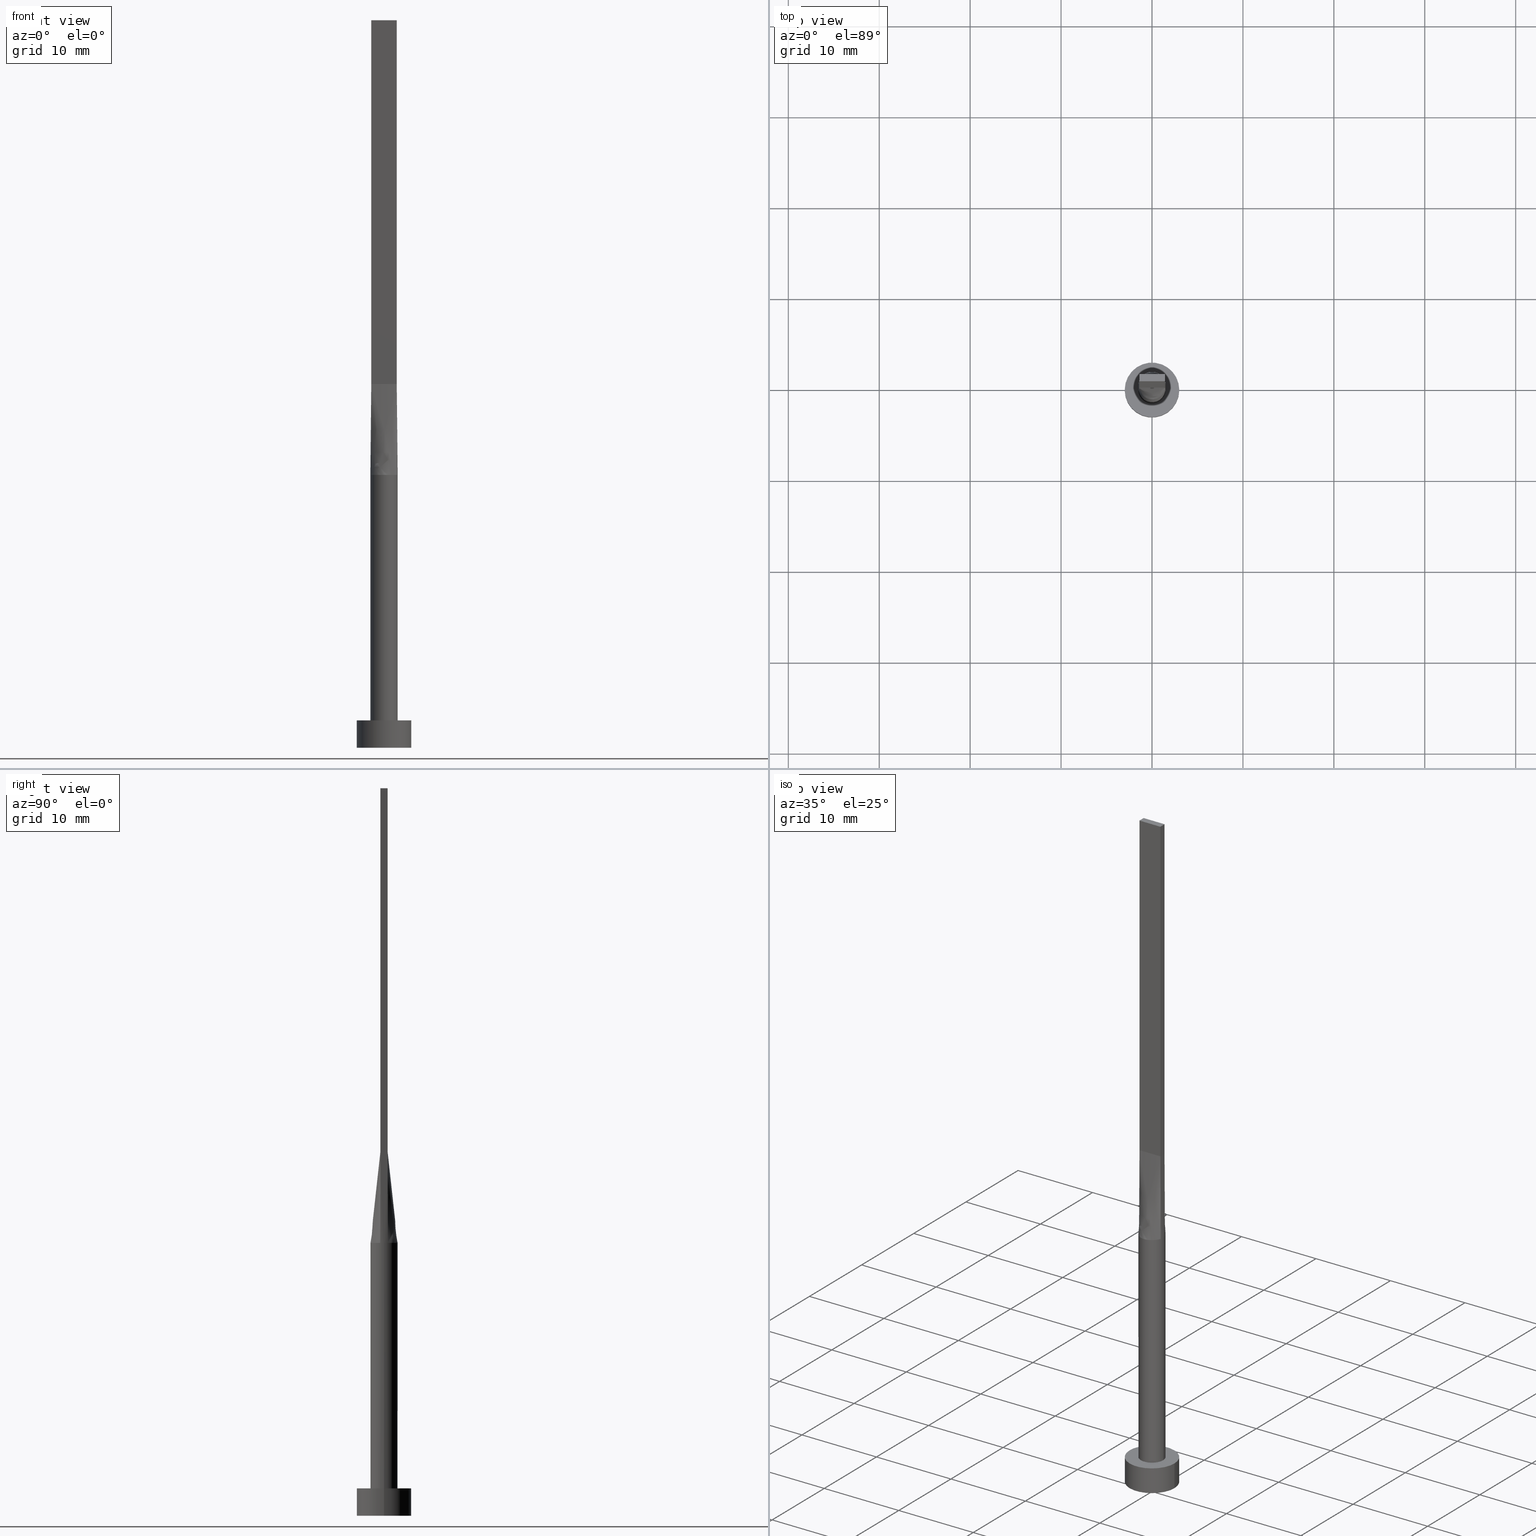
[diagram: canonical four-view strip — front | top / right | iso, engineering-drawing reading convention]
A machine part, canonical four-view strip (front | top / right | iso — engineering-drawing reading convention). The complete STEP part file that produces these views, byte-faithful:
ISO-10303-21;
HEADER;
FILE_DESCRIPTION (( 'STEP AP203' ),
    '1' );
FILE_NAME ('2038.STEP',
    '2026-02-12T09:00:09',
    ( '' ),
    ( '' ),
    'SwSTEP 2.0',
    'SolidWorks 2019',
    '' );
FILE_SCHEMA (( 'CONFIG_CONTROL_DESIGN' ));
ENDSEC;

DATA;
#1 = CARTESIAN_POINT ( 'NONE',  ( 0.000000000000000000, 0.000000000000000000, 30.00000000000000000 ) ) ;
#2 = CARTESIAN_POINT ( 'NONE',  ( -1.421142960730617189, 0.4060408459230336331, 35.00000000000000000 ) ) ;
#3 = ORIENTED_EDGE ( 'NONE', *, *, #125, .F. ) ;
#4 = CARTESIAN_POINT ( 'NONE',  ( 1.399999999999999689, 0.1333333333333333037, 39.99999999999999289 ) ) ;
#5 = CARTESIAN_POINT ( 'NONE',  ( -1.409267053536706893, -0.5276477295819155255, 30.00000000000000000 ) ) ;
#6 = ORIENTED_EDGE ( 'NONE', *, *, #383, .F. ) ;
#7 = ORIENTED_EDGE ( 'NONE', *, *, #525, .F. ) ;
#8 = DIRECTION ( 'NONE',  ( 1.000000000000000000, 0.000000000000000000, 0.000000000000000000 ) ) ;
#9 = CARTESIAN_POINT ( 'NONE',  ( -1.283333333333333437, -0.3999999999999996336, 39.99999999999999289 ) ) ;
#10 = ORIENTED_EDGE ( 'NONE', *, *, #539, .T. ) ;
#11 = AXIS2_PLACEMENT_3D ( 'NONE', #363, #145, #8 ) ;
#12 = CARTESIAN_POINT ( 'NONE',  ( -1.500000000000000222, 0.000000000000000000, 3.000000000000000000 ) ) ;
#13 = CYLINDRICAL_SURFACE ( 'NONE', #414, 3.000000000000000444 ) ;
#14 = ORIENTED_EDGE ( 'NONE', *, *, #257, .T. ) ;
#15 = DIRECTION ( 'NONE',  ( 1.000000000000000000, -5.808225924029488744E-17, 0.000000000000000000 ) ) ;
#16 = CARTESIAN_POINT ( 'NONE',  ( -1.442285921461235132, -0.4120816918460664113, 30.00000000000000000 ) ) ;
#17 = ORIENTED_EDGE ( 'NONE', *, *, #73, .T. ) ;
#18 = LINE ( 'NONE', #427, #317 ) ;
#19 = CARTESIAN_POINT ( 'NONE',  ( 0.000000000000000000, 0.000000000000000000, 80.00000000000000000 ) ) ;
#20 = APPROVAL_PERSON_ORGANIZATION ( #164, #328, #347 ) ;
#21 = CARTESIAN_POINT ( 'NONE',  ( 0.5833333333333330373, 0.4000000000000001887, 39.99999999999999289 ) ) ;
#22 = EDGE_CURVE ( 'NONE', #43, #59, #226, .T. ) ;
#23 = EDGE_CURVE ( 'NONE', #55, #326, #445, .T. ) ;
#24 = CARTESIAN_POINT ( 'NONE',  ( 1.442285921461234910, 0.4120816918460671330, 30.00000000000000000 ) ) ;
#25 = LINE ( 'NONE', #61, #463 ) ;
#26 = CARTESIAN_POINT ( 'NONE',  ( -1.442387148345315895, 0.4121110244020492197, 30.00000000000000000 ) ) ;
#27 = FACE_OUTER_BOUND ( 'NONE', #491, .T. ) ;
#28 = CARTESIAN_POINT ( 'NONE',  ( 1.409267053536706671, -0.5276477295819165247, 30.00000000000000000 ) ) ;
#29 = DATE_TIME_ROLE ( 'creation_date' ) ;
#30 = FACE_OUTER_BOUND ( 'NONE', #238, .T. ) ;
#31 = EDGE_CURVE ( 'NONE', #308, #182, #261, .T. ) ;
#32 = CIRCLE ( 'NONE', #364, 1.500000000000000222 ) ;
#33 = CARTESIAN_POINT ( 'NONE',  ( -0.3767059690781846548, 1.463302066271692015, 30.00000000000000000 ) ) ;
#34 = APPROVAL_DATE_TIME ( #567, #254 ) ;
#35 = CARTESIAN_POINT ( 'NONE',  ( 0.1885753531885901724, 1.500000000000000666, 30.00000000000000711 ) ) ;
#36 = DATE_AND_TIME ( #123, #271 ) ;
#37 = CIRCLE ( 'NONE', #330, 1.500000000000000222 ) ;
#38 = ORIENTED_EDGE ( 'NONE', *, *, #383, .T. ) ;
#39 = CARTESIAN_POINT ( 'NONE',  ( 3.000000000000000444, 3.673940397442060361E-16, 3.000000000000000000 ) ) ;
#40 = CC_DESIGN_DATE_AND_TIME_ASSIGNMENT ( #388, #29, ( #577 ) ) ;
#41 = EDGE_CURVE ( 'NONE', #47, #55, #264, .T. ) ;
#42 = CARTESIAN_POINT ( 'NONE',  ( 1.442285921461234910, 0.4120816918460673550, 30.00000000000000000 ) ) ;
#43 = VERTEX_POINT ( 'NONE', #574 ) ;
#44 = AXIS2_PLACEMENT_3D ( 'NONE', #19, #516, #428 ) ;
#45 = DIRECTION ( 'NONE',  ( 1.000000000000000000, -5.808225924029488744E-17, 0.000000000000000000 ) ) ;
#46 = LINE ( 'NONE', #132, #215 ) ;
#47 = VERTEX_POINT ( 'NONE', #569 ) ;
#48 = ORIENTED_EDGE ( 'NONE', *, *, #561, .F. ) ;
#49 = DIRECTION ( 'NONE',  ( -2.710505431213761578E-16, -1.000000000000000000, 0.000000000000000000 ) ) ;
#50 = CARTESIAN_POINT ( 'NONE',  ( 1.399999999999999911, -0.3999999999999998002, 80.00000000000000000 ) ) ;
#51 = DIRECTION ( 'NONE',  ( -0.000000000000000000, -0.000000000000000000, -1.000000000000000000 ) ) ;
#52 = EDGE_LOOP ( 'NONE', ( #273, #352, #548, #313 ) ) ;
#53 = DIRECTION ( 'NONE',  ( 1.000000000000000000, 0.000000000000000000, 0.000000000000000000 ) ) ;
#54 = CARTESIAN_POINT ( 'NONE',  ( 0.3767059690781844328, -1.463302066271691571, 30.00000000000000000 ) ) ;
#55 = VERTEX_POINT ( 'NONE', #248 ) ;
#56 = VECTOR ( 'NONE', #210, 1000.000000000000000 ) ;
#57 = CARTESIAN_POINT ( 'NONE',  ( 1.442393550978850802, -0.4121129214357137083, 30.00000000000000000 ) ) ;
#58 = CARTESIAN_POINT ( 'NONE',  ( -0.8665786268839192896, -1.235433898681764786, 30.00000000000000000 ) ) ;
#59 = VERTEX_POINT ( 'NONE', #252 ) ;
#60 = CARTESIAN_POINT ( 'NONE',  ( 0.3767059690781852654, 1.463302066271692015, 30.00000000000000000 ) ) ;
#61 = CARTESIAN_POINT ( 'NONE',  ( 1.399999999999999689, 0.4000000000000002442, 40.00000000000000000 ) ) ;
#62 = CARTESIAN_POINT ( 'NONE',  ( -1.442285921461234688, 0.4120816918460674105, 30.00000000000000000 ) ) ;
#63 = B_SPLINE_SURFACE_WITH_KNOTS ( 'NONE', 3, 1, ( 
 ( #16, #372 ),
 ( #5, #9 ),
 ( #329, #279 ),
 ( #510, #91 ),
 ( #106, #360 ),
 ( #58, #541 ),
 ( #185, #146 ),
 ( #547, #143 ),
 ( #322, #501 ),
 ( #100, #460 ),
 ( #54, #504 ),
 ( #232, #189 ),
 ( #103, #464 ),
 ( #514, #336 ),
 ( #157, #154 ),
 ( #341, #381 ),
 ( #28, #69 ),
 ( #111, #333 ) ),
 .UNSPECIFIED., .F., .F., .F.,
 ( 4, 2, 2, 2, 2, 2, 2, 2, 4 ),
 ( 2, 2 ),
 ( 0.000000000000000000, 0.1250000000000000833, 0.2500000000000001665, 0.3750000000000001110, 0.5000000000000001110, 0.6250000000000001110, 0.7500000000000000000, 0.8750000000000000000, 1.000000000000000000 ),
 ( 0.000000000000000000, 1.000000000000000000 ),
 .UNSPECIFIED. ) ;
#64 = EDGE_CURVE ( 'NONE', #331, #268, #68, .T. ) ;
#65 = DIRECTION ( 'NONE',  ( 0.000000000000000000, 0.000000000000000000, 1.000000000000000000 ) ) ;
#66 = CIRCLE ( 'NONE', #11, 1.500000000000000222 ) ;
#67 = CARTESIAN_POINT ( 'NONE',  ( -0.7158926189626803049, 1.330660769095148410, 30.00000000000000355 ) ) ;
#68 = CIRCLE ( 'NONE', #416, 1.500000000000000222 ) ;
#69 = CARTESIAN_POINT ( 'NONE',  ( 1.283333333333332993, -0.3999999999999997446, 39.99999999999999289 ) ) ;
#70 = DIRECTION ( 'NONE',  ( -0.000000000000000000, -0.000000000000000000, -1.000000000000000000 ) ) ;
#71 = CARTESIAN_POINT ( 'NONE',  ( 1.399999999999999911, -0.3999999999999998002, 40.00000000000000000 ) ) ;
#72 = DIRECTION ( 'NONE',  ( 2.710505431213761085E-16, -1.000000000000000000, 0.000000000000000000 ) ) ;
#73 = EDGE_CURVE ( 'NONE', #420, #331, #213, .T. ) ;
#74 = DIRECTION ( 'NONE',  ( -0.000000000000000000, -0.000000000000000000, -1.000000000000000000 ) ) ;
#75 = DIRECTION ( 'NONE',  ( 1.000000000000000000, 0.000000000000000000, 0.000000000000000000 ) ) ;
#76 = PERSON_AND_ORGANIZATION ( #396, #307 ) ;
#77 = CARTESIAN_POINT ( 'NONE',  ( -0.7158926189626803049, 1.330660769095148410, 30.00000000000000355 ) ) ;
#78 = DIRECTION ( 'NONE',  ( 1.000000000000000000, 0.000000000000000000, 0.000000000000000000 ) ) ;
#79 = CARTESIAN_POINT ( 'NONE',  ( 1.500000000000000222, 1.836970198721030181E-16, 30.00000000000000000 ) ) ;
#80 = ADVANCED_FACE ( 'NONE', ( #344 ), #523, .T. ) ;
#81 = APPLICATION_CONTEXT ( 'configuration controlled 3d designs of mechanical parts and assemblies' ) ;
#82 = CC_DESIGN_PERSON_AND_ORGANIZATION_ASSIGNMENT ( #212, #386, ( #556 ) ) ;
#83 = AXIS2_PLACEMENT_3D ( 'NONE', #295, #431, #72 ) ;
#84 = AXIS2_PLACEMENT_3D ( 'NONE', #305, #348, #475 ) ;
#85 = CC_DESIGN_DATE_AND_TIME_ASSIGNMENT ( #36, #253, ( #528 ) ) ;
#86 = ORIENTED_EDGE ( 'NONE', *, *, #257, .F. ) ;
#87 = ADVANCED_FACE ( 'NONE', ( #168 ), #429, .T. ) ;
#88 = DIRECTION ( 'NONE',  ( -0.000000000000000000, -0.000000000000000000, -1.000000000000000000 ) ) ;
#89 = ORIENTED_EDGE ( 'NONE', *, *, #107, .F. ) ;
#90 = CARTESIAN_POINT ( 'NONE',  ( -1.399999999999999911, -0.3999999999999996336, 80.00000000000000000 ) ) ;
#91 = CARTESIAN_POINT ( 'NONE',  ( -0.9333333333333335702, -0.3999999999999996336, 39.99999999999999289 ) ) ;
#92 = EDGE_LOOP ( 'NONE', ( #355, #139 ) ) ;
#93 = AXIS2_PLACEMENT_3D ( 'NONE', #572, #479, #75 ) ;
#94 = ORIENTED_EDGE ( 'NONE', *, *, #22, .T. ) ;
#95 = CARTESIAN_POINT ( 'NONE',  ( -1.421142960730617633, -0.4060408459230329670, 35.00000000000000000 ) ) ;
#96 = CARTESIAN_POINT ( 'NONE',  ( -1.399999999999999689, 0.4000000000000002442, 80.00000000000000000 ) ) ;
#97 = ORIENTED_EDGE ( 'NONE', *, *, #398, .F. ) ;
#98 = EDGE_LOOP ( 'NONE', ( #190, #543, #531, #277, #453, #552 ) ) ;
#99 = CARTESIAN_POINT ( 'NONE',  ( 1.480021770517838231, -0.2800062201479543988, 30.00000000000000000 ) ) ;
#100 = CARTESIAN_POINT ( 'NONE',  ( 0.1885753531885892564, -1.499999999999999778, 30.00000000000000000 ) ) ;
#101 = VERTEX_POINT ( 'NONE', #203 ) ;
#102 = DIRECTION ( 'NONE',  ( -0.000000000000000000, -0.000000000000000000, -1.000000000000000000 ) ) ;
#103 = CARTESIAN_POINT ( 'NONE',  ( 0.8665786268839185125, -1.235433898681766340, 30.00000000000001066 ) ) ;
#104 = ORIENTED_EDGE ( 'NONE', *, *, #31, .T. ) ;
#105 = CARTESIAN_POINT ( 'NONE',  ( 1.166666666666666075, 0.4000000000000001332, 39.99999999999999289 ) ) ;
#106 = CARTESIAN_POINT ( 'NONE',  ( -1.114527776139990323, -1.017390422009413209, 30.00000000000000000 ) ) ;
#107 = EDGE_CURVE ( 'NONE', #308, #487, #382, .T. ) ;
#108 = CARTESIAN_POINT ( 'NONE',  ( 1.283333333333332993, 0.4000000000000001887, 39.99999999999999289 ) ) ;
#109 = CARTESIAN_POINT ( 'NONE',  ( 1.399999999999999689, 0.4000000000000002442, 40.00000000000000000 ) ) ;
#110 = CARTESIAN_POINT ( 'NONE',  ( -0.3767059690781846548, 1.463302066271692015, 30.00000000000000000 ) ) ;
#111 = CARTESIAN_POINT ( 'NONE',  ( 1.442285921461234910, -0.4120816918460670220, 30.00000000000000000 ) ) ;
#112 = CIRCLE ( 'NONE', #426, 3.000000000000000444 ) ;
#113 = CARTESIAN_POINT ( 'NONE',  ( -1.442285921461235132, -0.4120816918460665224, 30.00000000000000000 ) ) ;
#114 = FACE_OUTER_BOUND ( 'NONE', #397, .T. ) ;
#115 = APPROVAL_DATE_TIME ( #304, #421 ) ;
#116 = LINE ( 'NONE', #301, #56 ) ;
#117 =( NAMED_UNIT ( * ) SI_UNIT ( $, .STERADIAN. ) SOLID_ANGLE_UNIT ( ) );
#118 = DIRECTION ( 'NONE',  ( -1.000000000000000000, 0.000000000000000000, 0.000000000000000000 ) ) ;
#119 = APPROVAL_ROLE ( '' ) ;
#120 = DIRECTION ( 'NONE',  ( -1.000000000000000000, 0.000000000000000000, 0.000000000000000000 ) ) ;
#121 = AXIS2_PLACEMENT_3D ( 'NONE', #454, #191, #549 ) ;
#122 = VECTOR ( 'NONE', #45, 1000.000000000000000 ) ;
#123 = CALENDAR_DATE ( 2026, 12, 2 ) ;
#124 = CARTESIAN_POINT ( 'NONE',  ( 1.212111761082483197, 0.8950936653899574935, 30.00000000000000711 ) ) ;
#125 = EDGE_CURVE ( 'NONE', #55, #47, #112, .T. ) ;
#126 = SHAPE_DEFINITION_REPRESENTATION ( #581, #513 ) ;
#127 = AXIS2_PLACEMENT_3D ( 'NONE', #327, #315, #53 ) ;
#128 = EDGE_CURVE ( 'NONE', #407, #369, #116, .T. ) ;
#129 = ORIENTED_EDGE ( 'NONE', *, *, #506, .F. ) ;
#130 = ORIENTED_EDGE ( 'NONE', *, *, #128, .F. ) ;
#131 = DIRECTION ( 'NONE',  ( 1.000000000000000000, 0.000000000000000000, -0.000000000000000000 ) ) ;
#132 = CARTESIAN_POINT ( 'NONE',  ( 1.399999999999999911, -0.3999999999999998002, 80.00000000000000000 ) ) ;
#133 = ORIENTED_EDGE ( 'NONE', *, *, #561, .T. ) ;
#134 = ORIENTED_EDGE ( 'NONE', *, *, #281, .F. ) ;
#135 = DIRECTION ( 'NONE',  ( 1.000000000000000000, 0.000000000000000000, -0.000000000000000000 ) ) ;
#136 = CARTESIAN_POINT ( 'NONE',  ( 0.000000000000000000, 0.000000000000000000, 3.000000000000000000 ) ) ;
#137 = ORIENTED_EDGE ( 'NONE', *, *, #23, .T. ) ;
#138 = VECTOR ( 'NONE', #554, 1000.000000000000000 ) ;
#139 = ORIENTED_EDGE ( 'NONE', *, *, #64, .F. ) ;
#140 = AXIS2_PLACEMENT_3D ( 'NONE', #387, #70, #120 ) ;
#141 = EDGE_CURVE ( 'NONE', #285, #234, #256, .T. ) ;
#142 = CYLINDRICAL_SURFACE ( 'NONE', #442, 1.500000000000000222 ) ;
#143 = CARTESIAN_POINT ( 'NONE',  ( -0.2333333333333344473, -0.3999999999999996336, 39.99999999999999289 ) ) ;
#144 = ORIENTED_EDGE ( 'NONE', *, *, #439, .T. ) ;
#145 = DIRECTION ( 'NONE',  ( 0.000000000000000000, 0.000000000000000000, 1.000000000000000000 ) ) ;
#146 = CARTESIAN_POINT ( 'NONE',  ( -0.4666666666666673957, -0.3999999999999996336, 39.99999999999999289 ) ) ;
#147 = VERTEX_POINT ( 'NONE', #478 ) ;
#148 = CARTESIAN_POINT ( 'NONE',  ( 1.399999999999999911, -0.2666666666666665519, 39.99999999999999289 ) ) ;
#149 = LINE ( 'NONE', #2, #532 ) ;
#150 = CC_DESIGN_PERSON_AND_ORGANIZATION_ASSIGNMENT ( #76, #437, ( #577 ) ) ;
#151 = ORIENTED_EDGE ( 'NONE', *, *, #269, .T. ) ;
#152 = CIRCLE ( 'NONE', #339, 3.000000000000000444 ) ;
#153 = CARTESIAN_POINT ( 'NONE',  ( -0.5833333333333332593, 0.4000000000000001887, 39.99999999999999289 ) ) ;
#154 = CARTESIAN_POINT ( 'NONE',  ( 0.9333333333333324600, -0.3999999999999997446, 39.99999999999999289 ) ) ;
#155 = B_SPLINE_SURFACE_WITH_KNOTS ( 'NONE', 3, 1, ( 
 ( #62, #380 ),
 ( #158, #242 ),
 ( #249, #476 ),
 ( #517, #375 ),
 ( #197, #200 ),
 ( #113, #294 ) ),
 .UNSPECIFIED., .F., .F., .F.,
 ( 4, 2, 4 ),
 ( 2, 2 ),
 ( 0.000000000000000000, 0.5000000000000000000, 1.000000000000000000 ),
 ( 0.000000000000000000, 1.000000000000000000 ),
 .UNSPECIFIED. ) ;
#156 = CARTESIAN_POINT ( 'NONE',  ( -0.1166666666666663771, 0.4000000000000001887, 39.99999999999999289 ) ) ;
#157 = CARTESIAN_POINT ( 'NONE',  ( 1.212111761082483197, -0.8950936653899579376, 30.00000000000000711 ) ) ;
#158 = CARTESIAN_POINT ( 'NONE',  ( -1.480021770517838231, 0.2800062201479542878, 30.00000000000000000 ) ) ;
#159 = DIRECTION ( 'NONE',  ( 0.000000000000000000, 0.000000000000000000, 1.000000000000000000 ) ) ;
#160 = CARTESIAN_POINT ( 'NONE',  ( 0.000000000000000000, 0.000000000000000000, 3.000000000000000000 ) ) ;
#161 = FACE_OUTER_BOUND ( 'NONE', #538, .T. ) ;
#162 = PERSON_AND_ORGANIZATION ( #396, #307 ) ;
#163 = CARTESIAN_POINT ( 'NONE',  ( -1.359280768448767329, 0.6502025712814717417, 30.00000000000001066 ) ) ;
#164 = PERSON_AND_ORGANIZATION ( #396, #307 ) ;
#165 = DIRECTION ( 'NONE',  ( 0.000000000000000000, 0.000000000000000000, 1.000000000000000000 ) ) ;
#166 = COORDINATED_UNIVERSAL_TIME_OFFSET ( 1, 0, .AHEAD. ) ;
#167 = ADVANCED_FACE ( 'NONE', ( #30 ), #207, .F. ) ;
#168 = FACE_OUTER_BOUND ( 'NONE', #533, .T. ) ;
#169 = AXIS2_PLACEMENT_3D ( 'NONE', #553, #418, #176 ) ;
#170 = CLOSED_SHELL ( 'NONE', ( #183, #87, #393, #172, #167, #80, #456, #211, #354, #378, #202, #444, #495, #570, #486 ) ) ;
#171 = COORDINATED_UNIVERSAL_TIME_OFFSET ( 1, 0, .AHEAD. ) ;
#172 = ADVANCED_FACE ( 'NONE', ( #223, #405 ), #282, .T. ) ;
#173 = ORIENTED_EDGE ( 'NONE', *, *, #125, .T. ) ;
#174 = CC_DESIGN_APPROVAL ( #254, ( #577 ) ) ;
#175 = ORIENTED_EDGE ( 'NONE', *, *, #281, .T. ) ;
#176 = DIRECTION ( 'NONE',  ( 0.000000000000000000, -0.000000000000000000, -1.000000000000000000 ) ) ;
#177 = DIRECTION ( 'NONE',  ( 0.004228551254826029733, -0.001208157501378838471, 0.9999903298081123104 ) ) ;
#178 = ORIENTED_EDGE ( 'NONE', *, *, #467, .T. ) ;
#179 = CARTESIAN_POINT ( 'NONE',  ( 1.399999999999999689, 0.4000000000000002442, 40.00000000000000000 ) ) ;
#180 = DIRECTION ( 'NONE',  ( 2.710505431213761578E-16, 1.000000000000000000, 0.000000000000000000 ) ) ;
#181 = CARTESIAN_POINT ( 'NONE',  ( 1.399999999999999689, 0.4000000000000002442, 80.00000000000000000 ) ) ;
#182 = VERTEX_POINT ( 'NONE', #324 ) ;
#183 = ADVANCED_FACE ( 'NONE', ( #545 ), #142, .T. ) ;
#184 = CARTESIAN_POINT ( 'NONE',  ( -1.399999999999999689, 0.4000000000000002442, 80.00000000000000000 ) ) ;
#185 = CARTESIAN_POINT ( 'NONE',  ( -0.7158926189626813041, -1.330660769095146634, 29.99999999999999645 ) ) ;
#186 = AXIS2_PLACEMENT_3D ( 'NONE', #436, #165, #131 ) ;
#187 = EDGE_LOOP ( 'NONE', ( #266, #362, #492, #578 ) ) ;
#188 = CARTESIAN_POINT ( 'NONE',  ( -1.399999999999999911, -0.3999999999999996336, 40.00000000000000000 ) ) ;
#189 = CARTESIAN_POINT ( 'NONE',  ( 0.4666666666666655638, -0.3999999999999997446, 39.99999999999999289 ) ) ;
#190 = ORIENTED_EDGE ( 'NONE', *, *, #73, .F. ) ;
#191 = DIRECTION ( 'NONE',  ( 0.000000000000000000, 0.000000000000000000, 1.000000000000000000 ) ) ;
#192 = CARTESIAN_POINT ( 'NONE',  ( -1.359280768448767329, 0.6502025712814717417, 30.00000000000001066 ) ) ;
#193 = ORIENTED_EDGE ( 'NONE', *, *, #423, .F. ) ;
#194 = CARTESIAN_POINT ( 'NONE',  ( 0.1166666666666670016, 0.4000000000000001887, 39.99999999999999289 ) ) ;
#195 = DIRECTION ( 'NONE',  ( 5.808225924029488744E-17, 1.000000000000000000, -0.000000000000000000 ) ) ;
#196 = AXIS2_PLACEMENT_3D ( 'NONE', #419, #451, #180 ) ;
#197 = CARTESIAN_POINT ( 'NONE',  ( -1.480021770517838897, -0.2800062201479532331, 30.00000000000000355 ) ) ;
#198 = PLANE ( 'NONE',  #544 ) ;
#199 = B_SPLINE_SURFACE_WITH_KNOTS ( 'NONE', 3, 1, ( 
 ( #367, #356 ),
 ( #99, #148 ),
 ( #496, #278 ),
 ( #489, #4 ),
 ( #500, #503 ),
 ( #42, #179 ) ),
 .UNSPECIFIED., .F., .F., .F.,
 ( 4, 2, 4 ),
 ( 2, 2 ),
 ( 0.000000000000000000, 0.5000000000000000000, 1.000000000000000000 ),
 ( 0.000000000000000000, 1.000000000000000000 ),
 .UNSPECIFIED. ) ;
#200 = CARTESIAN_POINT ( 'NONE',  ( -1.399999999999999911, -0.2666666666666661634, 39.99999999999999289 ) ) ;
#201 = CARTESIAN_POINT ( 'NONE',  ( 0.000000000000000000, 0.000000000000000000, 30.00000000000000000 ) ) ;
#202 = ADVANCED_FACE ( 'NONE', ( #450 ), #459, .F. ) ;
#203 = CARTESIAN_POINT ( 'NONE',  ( -1.399999999999999911, -0.3999999999999996336, 80.00000000000000000 ) ) ;
#204 = DIRECTION ( 'NONE',  ( -1.000000000000000000, -0.000000000000000000, -0.000000000000000000 ) ) ;
#205 = FACE_OUTER_BOUND ( 'NONE', #274, .T. ) ;
#206 = APPROVAL_ROLE ( '' ) ;
#207 = PLANE ( 'NONE',  #186 ) ;
#208 = CIRCLE ( 'NONE', #121, 3.000000000000000444 ) ;
#209 = MECHANICAL_CONTEXT ( 'NONE', #81, 'mechanical' ) ;
#210 = DIRECTION ( 'NONE',  ( -0.000000000000000000, -0.000000000000000000, -1.000000000000000000 ) ) ;
#211 = ADVANCED_FACE ( 'NONE', ( #311 ), #199, .T. ) ;
#212 = PERSON_AND_ORGANIZATION ( #396, #307 ) ;
#213 = LINE ( 'NONE', #79, #395 ) ;
#214 = CALENDAR_DATE ( 2026, 12, 2 ) ;
#215 = VECTOR ( 'NONE', #410, 1000.000000000000000 ) ;
#216 =( NAMED_UNIT ( * ) PLANE_ANGLE_UNIT ( ) SI_UNIT ( $, .RADIAN. ) );
#217 = EDGE_LOOP ( 'NONE', ( #320, #173 ) ) ;
#218 = CARTESIAN_POINT ( 'NONE',  ( 1.409267053536706671, 0.5276477295819161917, 30.00000000000000000 ) ) ;
#219 = CC_DESIGN_PERSON_AND_ORGANIZATION_ASSIGNMENT ( #520, #530, ( #556 ) ) ;
#220 = CARTESIAN_POINT ( 'NONE',  ( -1.399999999999999911, -0.3999999999999996336, 80.00000000000000000 ) ) ;
#221 = CARTESIAN_POINT ( 'NONE',  ( -1.166666666666666519, 0.4000000000000002442, 39.99999999999999289 ) ) ;
#222 = ORIENTED_EDGE ( 'NONE', *, *, #291, .T. ) ;
#223 = FACE_BOUND ( 'NONE', #92, .T. ) ;
#224 = CARTESIAN_POINT ( 'NONE',  ( -1.409267053536706671, 0.5276477295819163027, 30.00000000000000711 ) ) ;
#225 = EDGE_CURVE ( 'NONE', #268, #331, #233, .T. ) ;
#226 = LINE ( 'NONE', #181, #494 ) ;
#227 = CARTESIAN_POINT ( 'NONE',  ( 3.000000000000000444, 3.673940397442060361E-16, 0.000000000000000000 ) ) ;
#228 = CARTESIAN_POINT ( 'NONE',  ( -1.283333333333333215, 0.4000000000000002442, 39.99999999999999289 ) ) ;
#229 = CARTESIAN_POINT ( 'NONE',  ( 1.442362338805188937, 0.4121038472597355895, 30.00000000000000000 ) ) ;
#230 = ORIENTED_EDGE ( 'NONE', *, *, #269, .F. ) ;
#231 = LINE ( 'NONE', #90, #493 ) ;
#232 = CARTESIAN_POINT ( 'NONE',  ( 0.7158926189626801939, -1.330660769095147744, 30.00000000000001066 ) ) ;
#233 = CIRCLE ( 'NONE', #127, 1.500000000000000222 ) ;
#234 = VERTEX_POINT ( 'NONE', #57 ) ;
#235 = VECTOR ( 'NONE', #564, 1000.000000000000000 ) ;
#236 = LINE ( 'NONE', #188, #122 ) ;
#237 = DIRECTION ( 'NONE',  ( -0.000000000000000000, -0.000000000000000000, -1.000000000000000000 ) ) ;
#238 = EDGE_LOOP ( 'NONE', ( #193, #499 ) ) ;
#239 = CARTESIAN_POINT ( 'NONE',  ( 1.359280768448766663, 0.6502025712814714087, 29.99999999999999289 ) ) ;
#240 = DIRECTION ( 'NONE',  ( -2.710505431213761085E-16, 1.000000000000000000, -0.000000000000000000 ) ) ;
#241 = B_SPLINE_SURFACE_WITH_KNOTS ( 'NONE', 3, 1, ( 
 ( #24, #384 ),
 ( #472, #108 ),
 ( #239, #105 ),
 ( #559, #286 ),
 ( #562, #425 ),
 ( #468, #21 ),
 ( #337, #290 ),
 ( #60, #335 ),
 ( #515, #194 ),
 ( #379, #156 ),
 ( #110, #512 ),
 ( #67, #555 ),
 ( #422, #153 ),
 ( #246, #415 ),
 ( #276, #318 ),
 ( #192, #221 ),
 ( #224, #228 ),
 ( #551, #497 ) ),
 .UNSPECIFIED., .F., .F., .F.,
 ( 4, 2, 2, 2, 2, 2, 2, 2, 4 ),
 ( 2, 2 ),
 ( 0.000000000000000000, 0.1250000000000000833, 0.2500000000000001665, 0.3750000000000001110, 0.5000000000000001110, 0.6250000000000002220, 0.7500000000000001110, 0.8750000000000001110, 1.000000000000000000 ),
 ( 0.000000000000000000, 1.000000000000000000 ),
 .UNSPECIFIED. ) ;
#242 = CARTESIAN_POINT ( 'NONE',  ( -1.399999999999999689, 0.2666666666666669960, 39.99999999999999289 ) ) ;
#243 = LINE ( 'NONE', #477, #263 ) ;
#244 = VECTOR ( 'NONE', #371, 1000.000000000000000 ) ;
#245 = VECTOR ( 'NONE', #51, 1000.000000000000000 ) ;
#246 = CARTESIAN_POINT ( 'NONE',  ( -1.114527776139989212, 1.017390422009414319, 30.00000000000000000 ) ) ;
#247 = CARTESIAN_POINT ( 'NONE',  ( -1.500000000000000222, 0.000000000000000000, 30.00000000000000000 ) ) ;
#248 = CARTESIAN_POINT ( 'NONE',  ( 3.000000000000000444, 3.673940397442060361E-16, 3.000000000000000000 ) ) ;
#249 = CARTESIAN_POINT ( 'NONE',  ( -1.500000000000000222, 0.1400549446402596099, 30.00000000000000355 ) ) ;
#250 =( LENGTH_UNIT ( ) NAMED_UNIT ( * ) SI_UNIT ( .MILLI., .METRE. ) );
#251 = DIRECTION ( 'NONE',  ( 0.000000000000000000, 0.000000000000000000, 1.000000000000000000 ) ) ;
#252 = CARTESIAN_POINT ( 'NONE',  ( -1.399999999999999689, 0.4000000000000002442, 80.00000000000000000 ) ) ;
#253 = DATE_TIME_ROLE ( 'classification_date' ) ;
#254 = APPROVAL ( #480, 'NEUR�EN�' ) ;
#255 = CARTESIAN_POINT ( 'NONE',  ( -0.8665786268839184014, 1.235433898681765896, 30.00000000000000355 ) ) ;
#256 = CIRCLE ( 'NONE', #93, 1.500000000000000222 ) ;
#257 = EDGE_CURVE ( 'NONE', #101, #407, #231, .T. ) ;
#258 = COORDINATED_UNIVERSAL_TIME_OFFSET ( 1, 0, .AHEAD. ) ;
#259 = CARTESIAN_POINT ( 'NONE',  ( -1.409267053536706671, 0.5276477295819163027, 30.00000000000000711 ) ) ;
#260 = PERSON_AND_ORGANIZATION ( #396, #307 ) ;
#261 = B_SPLINE_CURVE_WITH_KNOTS ( 'NONE', 3,
 ( #229, #218, #400, #124, #482, #346, #433, #391, #35, #297, #33, #77, #255, #521, #529, #163, #259, #26 ),
 .UNSPECIFIED., .F., .F.,
 ( 4, 2, 2, 2, 2, 2, 2, 2, 4 ),
 ( 0.000000000000000000, 0.1250000000000000833, 0.2500000000000001665, 0.3750000000000001110, 0.5000000000000001110, 0.6250000000000002220, 0.7500000000000001110, 0.8750000000000001110, 1.000000000000000000 ),
 .UNSPECIFIED. ) ;
#262 = CARTESIAN_POINT ( 'NONE',  ( 0.000000000000000000, 0.000000000000000000, 3.000000000000000000 ) ) ;
#263 = VECTOR ( 'NONE', #518, 1000.000000000000000 ) ;
#264 = CIRCLE ( 'NONE', #84, 3.000000000000000444 ) ;
#265 = PRODUCT_RELATED_PRODUCT_CATEGORY ( 'detail', '', ( #558 ) ) ;
#266 = ORIENTED_EDGE ( 'NONE', *, *, #342, .T. ) ;
#267 = LINE ( 'NONE', #446, #519 ) ;
#268 = VERTEX_POINT ( 'NONE', #12 ) ;
#269 = EDGE_CURVE ( 'NONE', #147, #285, #535, .T. ) ;
#270 = CARTESIAN_POINT ( 'NONE',  ( 0.000000000000000000, 0.000000000000000000, 3.000000000000000000 ) ) ;
#271 = LOCAL_TIME ( 10, 0, 9.000000000000000000, #345 ) ;
#272 = LINE ( 'NONE', #96, #394 ) ;
#273 = ORIENTED_EDGE ( 'NONE', *, *, #23, .F. ) ;
#274 = EDGE_LOOP ( 'NONE', ( #222, #130, #86, #175 ) ) ;
#275 = LINE ( 'NONE', #220, #284 ) ;
#276 = CARTESIAN_POINT ( 'NONE',  ( -1.212111761082482975, 0.8950936653899578266, 30.00000000000000355 ) ) ;
#277 = ORIENTED_EDGE ( 'NONE', *, *, #306, .F. ) ;
#278 = CARTESIAN_POINT ( 'NONE',  ( 1.399999999999999689, -0.1333333333333333315, 39.99999999999999289 ) ) ;
#279 = CARTESIAN_POINT ( 'NONE',  ( -1.166666666666666741, -0.3999999999999996336, 39.99999999999999289 ) ) ;
#280 = ORIENTED_EDGE ( 'NONE', *, *, #64, .T. ) ;
#281 = EDGE_CURVE ( 'NONE', #101, #147, #275, .T. ) ;
#282 = PLANE ( 'NONE',  #349 ) ;
#283 = DIRECTION ( 'NONE',  ( -1.000000000000000000, 0.000000000000000000, 0.000000000000000000 ) ) ;
#284 = VECTOR ( 'NONE', #413, 1000.000000000000000 ) ;
#285 = VERTEX_POINT ( 'NONE', #402 ) ;
#286 = CARTESIAN_POINT ( 'NONE',  ( 0.9333333333333329040, 0.4000000000000001332, 39.99999999999999289 ) ) ;
#287 = PLANE ( 'NONE',  #196 ) ;
#288 = DIRECTION ( 'NONE',  ( 0.000000000000000000, 0.000000000000000000, 1.000000000000000000 ) ) ;
#289 = CARTESIAN_POINT ( 'NONE',  ( -3.000000000000000444, 0.000000000000000000, 3.000000000000000000 ) ) ;
#290 = CARTESIAN_POINT ( 'NONE',  ( 0.4666666666666665630, 0.4000000000000001887, 39.99999999999999289 ) ) ;
#291 = EDGE_CURVE ( 'NONE', #147, #369, #236, .T. ) ;
#292 = DIRECTION ( 'NONE',  ( -0.000000000000000000, -0.000000000000000000, -1.000000000000000000 ) ) ;
#293 = VECTOR ( 'NONE', #292, 1000.000000000000000 ) ;
#294 = CARTESIAN_POINT ( 'NONE',  ( -1.399999999999999911, -0.3999999999999994671, 40.00000000000000000 ) ) ;
#295 = CARTESIAN_POINT ( 'NONE',  ( 1.399999999999999911, -0.3999999999999998002, 80.00000000000000000 ) ) ;
#296 = APPLICATION_PROTOCOL_DEFINITION ( 'international standard', 'config_control_design', 1994, #81 ) ;
#297 = CARTESIAN_POINT ( 'NONE',  ( -0.1885753531885899226, 1.500000000000000888, 30.00000000000000711 ) ) ;
#298 = SECURITY_CLASSIFICATION_LEVEL ( 'unclassified' ) ;
#299 = EDGE_CURVE ( 'NONE', #326, #461, #208, .T. ) ;
#300 = EDGE_CURVE ( 'NONE', #59, #412, #540, .T. ) ;
#301 = CARTESIAN_POINT ( 'NONE',  ( 1.399999999999999911, -0.3999999999999998002, 80.00000000000000000 ) ) ;
#302 = CARTESIAN_POINT ( 'NONE',  ( 1.421142960730617189, 0.4060408459230337996, 35.00000000000000000 ) ) ;
#303 = APPROVAL_PERSON_ORGANIZATION ( #162, #421, #206 ) ;
#304 = DATE_AND_TIME ( #571, #377 ) ;
#305 = CARTESIAN_POINT ( 'NONE',  ( 0.000000000000000000, 0.000000000000000000, 3.000000000000000000 ) ) ;
#306 = EDGE_CURVE ( 'NONE', #361, #285, #66, .T. ) ;
#307 = ORGANIZATION ( 'NEUR�EN�', 'NEUR�EN�', '' ) ;
#308 = VERTEX_POINT ( 'NONE', #359 ) ;
#309 = EDGE_LOOP ( 'NONE', ( #502, #134, #6, #542 ) ) ;
#310 = EDGE_CURVE ( 'NONE', #412, #147, #267, .T. ) ;
#311 = FACE_OUTER_BOUND ( 'NONE', #498, .T. ) ;
#312 = CARTESIAN_POINT ( 'NONE',  ( 0.000000000000000000, 0.000000000000000000, 0.000000000000000000 ) ) ;
#313 = ORIENTED_EDGE ( 'NONE', *, *, #423, .T. ) ;
#314 = ORIENTED_EDGE ( 'NONE', *, *, #467, .F. ) ;
#315 = DIRECTION ( 'NONE',  ( 0.000000000000000000, 0.000000000000000000, 1.000000000000000000 ) ) ;
#316 = DESIGN_CONTEXT ( 'detailed design', #374, 'design' ) ;
#317 = VECTOR ( 'NONE', #204, 1000.000000000000000 ) ;
#318 = CARTESIAN_POINT ( 'NONE',  ( -0.9333333333333331261, 0.4000000000000001887, 39.99999999999999289 ) ) ;
#319 = ORIENTED_EDGE ( 'NONE', *, *, #539, .F. ) ;
#320 = ORIENTED_EDGE ( 'NONE', *, *, #41, .T. ) ;
#321 = DIRECTION ( 'NONE',  ( -1.000000000000000000, 0.000000000000000000, 0.000000000000000000 ) ) ;
#322 = CARTESIAN_POINT ( 'NONE',  ( -0.1885753531885907275, -1.500000000000000000, 30.00000000000000000 ) ) ;
#323 = ORIENTED_EDGE ( 'NONE', *, *, #550, .T. ) ;
#324 = CARTESIAN_POINT ( 'NONE',  ( -1.442387148345315895, 0.4121110244020492197, 30.00000000000000000 ) ) ;
#325 = DIRECTION ( 'NONE',  ( 0.000000000000000000, 0.000000000000000000, 1.000000000000000000 ) ) ;
#326 = VERTEX_POINT ( 'NONE', #227 ) ;
#327 = CARTESIAN_POINT ( 'NONE',  ( 0.000000000000000000, 0.000000000000000000, 3.000000000000000000 ) ) ;
#328 = APPROVAL ( #573, 'NEUR�EN�' ) ;
#329 = CARTESIAN_POINT ( 'NONE',  ( -1.359280768448767551, -0.6502025712814705205, 29.99999999999999289 ) ) ;
#330 = AXIS2_PLACEMENT_3D ( 'NONE', #201, #159, #338 ) ;
#331 = VERTEX_POINT ( 'NONE', #409 ) ;
#332 = CARTESIAN_POINT ( 'NONE',  ( 0.000000000000000000, 0.000000000000000000, 30.00000000000000000 ) ) ;
#333 = CARTESIAN_POINT ( 'NONE',  ( 1.399999999999999911, -0.3999999999999998002, 40.00000000000000000 ) ) ;
#334 = EDGE_CURVE ( 'NONE', #420, #308, #576, .T. ) ;
#335 = CARTESIAN_POINT ( 'NONE',  ( 0.2333333333333335313, 0.4000000000000001887, 39.99999999999999289 ) ) ;
#336 = CARTESIAN_POINT ( 'NONE',  ( 0.8166666666666655416, -0.3999999999999997446, 39.99999999999999289 ) ) ;
#337 = CARTESIAN_POINT ( 'NONE',  ( 0.7158926189626808601, 1.330660769095147966, 29.99999999999999645 ) ) ;
#338 = DIRECTION ( 'NONE',  ( 1.000000000000000000, 0.000000000000000000, 0.000000000000000000 ) ) ;
#339 = AXIS2_PLACEMENT_3D ( 'NONE', #312, #325, #406 ) ;
#340 = DIRECTION ( 'NONE',  ( 0.000000000000000000, 0.000000000000000000, 1.000000000000000000 ) ) ;
#341 = CARTESIAN_POINT ( 'NONE',  ( 1.359280768448766663, -0.6502025712814719638, 30.00000000000001066 ) ) ;
#342 = EDGE_CURVE ( 'NONE', #487, #412, #18, .T. ) ;
#343 = CALENDAR_DATE ( 2026, 12, 2 ) ;
#344 = FACE_OUTER_BOUND ( 'NONE', #98, .T. ) ;
#345 = COORDINATED_UNIVERSAL_TIME_OFFSET ( 1, 0, .AHEAD. ) ;
#346 = CARTESIAN_POINT ( 'NONE',  ( 0.8665786268839186235, 1.235433898681765008, 29.99999999999999289 ) ) ;
#347 = APPROVAL_ROLE ( '' ) ;
#348 = DIRECTION ( 'NONE',  ( 0.000000000000000000, 0.000000000000000000, 1.000000000000000000 ) ) ;
#349 = AXIS2_PLACEMENT_3D ( 'NONE', #270, #462, #135 ) ;
#350 = APPROVAL_STATUS ( 'not_yet_approved' ) ;
#351 = LOCAL_TIME ( 10, 0, 9.000000000000000000, #166 ) ;
#352 = ORIENTED_EDGE ( 'NONE', *, *, #41, .F. ) ;
#353 = AXIS2_PLACEMENT_3D ( 'NONE', #524, #251, #78 ) ;
#354 = ADVANCED_FACE ( 'NONE', ( #470 ), #155, .T. ) ;
#355 = ORIENTED_EDGE ( 'NONE', *, *, #225, .F. ) ;
#356 = CARTESIAN_POINT ( 'NONE',  ( 1.399999999999999911, -0.3999999999999998002, 40.00000000000000000 ) ) ;
#357 = CARTESIAN_POINT ( 'NONE',  ( -1.399999999999999689, 0.4000000000000002442, 40.00000000000000000 ) ) ;
#358 = ORIENTED_EDGE ( 'NONE', *, *, #334, .F. ) ;
#359 = CARTESIAN_POINT ( 'NONE',  ( 1.442362338805188937, 0.4121038472597355895, 30.00000000000000000 ) ) ;
#360 = CARTESIAN_POINT ( 'NONE',  ( -0.8166666666666668739, -0.3999999999999996336, 39.99999999999999289 ) ) ;
#361 = VERTEX_POINT ( 'NONE', #507 ) ;
#362 = ORIENTED_EDGE ( 'NONE', *, *, #300, .F. ) ;
#363 = CARTESIAN_POINT ( 'NONE',  ( 0.000000000000000000, 0.000000000000000000, 30.00000000000000000 ) ) ;
#364 = AXIS2_PLACEMENT_3D ( 'NONE', #471, #65, #473 ) ;
#365 = LINE ( 'NONE', #455, #138 ) ;
#366 = ORIENTED_EDGE ( 'NONE', *, *, #342, .F. ) ;
#367 = CARTESIAN_POINT ( 'NONE',  ( 1.442285921461234688, -0.4120816918460675771, 30.00000000000000000 ) ) ;
#368 = FACE_OUTER_BOUND ( 'NONE', #52, .T. ) ;
#369 = VERTEX_POINT ( 'NONE', #71 ) ;
#370 = CC_DESIGN_APPROVAL ( #328, ( #528 ) ) ;
#371 = DIRECTION ( 'NONE',  ( -0.004228551254826051417, -0.001208157501378827629, -0.9999903298081123104 ) ) ;
#372 = CARTESIAN_POINT ( 'NONE',  ( -1.399999999999999911, -0.3999999999999996336, 40.00000000000000000 ) ) ;
#373 = ORIENTED_EDGE ( 'NONE', *, *, #128, .T. ) ;
#374 = APPLICATION_CONTEXT ( 'configuration controlled 3d designs of mechanical parts and assemblies' ) ;
#375 = CARTESIAN_POINT ( 'NONE',  ( -1.399999999999999689, -0.1333333333333328041, 39.99999999999999289 ) ) ;
#376 = DIRECTION ( 'NONE',  ( -1.000000000000000000, 5.808225924029488744E-17, 0.000000000000000000 ) ) ;
#377 = LOCAL_TIME ( 10, 0, 9.000000000000000000, #171 ) ;
#378 = ADVANCED_FACE ( 'NONE', ( #27 ), #241, .T. ) ;
#379 = CARTESIAN_POINT ( 'NONE',  ( -0.1885753531885899226, 1.500000000000000888, 30.00000000000000711 ) ) ;
#380 = CARTESIAN_POINT ( 'NONE',  ( -1.399999999999999689, 0.4000000000000002442, 40.00000000000000000 ) ) ;
#381 = CARTESIAN_POINT ( 'NONE',  ( 1.166666666666666075, -0.3999999999999997446, 39.99999999999999289 ) ) ;
#382 = LINE ( 'NONE', #302, #235 ) ;
#383 = EDGE_CURVE ( 'NONE', #59, #101, #272, .T. ) ;
#384 = CARTESIAN_POINT ( 'NONE',  ( 1.399999999999999689, 0.4000000000000002442, 40.00000000000000000 ) ) ;
#385 = PLANE ( 'NONE',  #83 ) ;
#386 = PERSON_AND_ORGANIZATION_ROLE ( 'creator' ) ;
#387 = CARTESIAN_POINT ( 'NONE',  ( 0.000000000000000000, 0.000000000000000000, 30.00000000000000000 ) ) ;
#388 = DATE_AND_TIME ( #434, #509 ) ;
#389 = DIRECTION ( 'NONE',  ( 1.000000000000000000, 0.000000000000000000, 0.000000000000000000 ) ) ;
#390 = PERSON_AND_ORGANIZATION_ROLE ( 'classification_officer' ) ;
#391 = CARTESIAN_POINT ( 'NONE',  ( 0.3767059690781852654, 1.463302066271692015, 30.00000000000000000 ) ) ;
#392 = DATE_AND_TIME ( #214, #351 ) ;
#393 = ADVANCED_FACE ( 'NONE', ( #368 ), #13, .T. ) ;
#394 = VECTOR ( 'NONE', #403, 1000.000000000000000 ) ;
#395 = VECTOR ( 'NONE', #526, 1000.000000000000000 ) ;
#396 = PERSON ( 'NEUR�EN�', 'NEUR�EN�', 'NEUR�EN�', ('NEUR�EN�'), ('NEUR�EN�'), ('NEUR�EN�') ) ;
#397 = EDGE_LOOP ( 'NONE', ( #178, #97, #411, #373 ) ) ;
#398 = EDGE_CURVE ( 'NONE', #43, #487, #365, .T. ) ;
#399 = EDGE_CURVE ( 'NONE', #182, #412, #149, .T. ) ;
#400 = CARTESIAN_POINT ( 'NONE',  ( 1.359280768448766663, 0.6502025712814714087, 29.99999999999999289 ) ) ;
#401 = APPROVAL_PERSON_ORGANIZATION ( #260, #254, #119 ) ;
#402 = CARTESIAN_POINT ( 'NONE',  ( -1.442368678646663405, -0.4121057215347019853, 30.00000000000000000 ) ) ;
#403 = DIRECTION ( 'NONE',  ( -2.710505431213761578E-16, -1.000000000000000000, 0.000000000000000000 ) ) ;
#404 = ORIENTED_EDGE ( 'NONE', *, *, #334, .T. ) ;
#405 = FACE_OUTER_BOUND ( 'NONE', #217, .T. ) ;
#406 = DIRECTION ( 'NONE',  ( 1.000000000000000000, 0.000000000000000000, 0.000000000000000000 ) ) ;
#407 = VERTEX_POINT ( 'NONE', #50 ) ;
#408 = ORIENTED_EDGE ( 'NONE', *, *, #399, .F. ) ;
#409 = CARTESIAN_POINT ( 'NONE',  ( 1.500000000000000222, 1.836970198721030181E-16, 3.000000000000000000 ) ) ;
#410 = DIRECTION ( 'NONE',  ( -2.710505431213761085E-16, 1.000000000000000000, 0.000000000000000000 ) ) ;
#411 = ORIENTED_EDGE ( 'NONE', *, *, #439, .F. ) ;
#412 = VERTEX_POINT ( 'NONE', #357 ) ;
#413 = DIRECTION ( 'NONE',  ( -0.000000000000000000, -0.000000000000000000, -1.000000000000000000 ) ) ;
#414 = AXIS2_PLACEMENT_3D ( 'NONE', #136, #237, #283 ) ;
#415 = CARTESIAN_POINT ( 'NONE',  ( -0.8166666666666665408, 0.4000000000000001887, 39.99999999999999289 ) ) ;
#416 = AXIS2_PLACEMENT_3D ( 'NONE', #441, #484, #438 ) ;
#417 = EDGE_LOOP ( 'NONE', ( #358, #17, #280, #129, #319, #465 ) ) ;
#418 = DIRECTION ( 'NONE',  ( 0.000000000000000000, -1.000000000000000000, 0.000000000000000000 ) ) ;
#419 = CARTESIAN_POINT ( 'NONE',  ( -1.399999999999999689, 0.4000000000000002442, 80.00000000000000000 ) ) ;
#420 = VERTEX_POINT ( 'NONE', #536 ) ;
#421 = APPROVAL ( #350, 'NEUR�EN�' ) ;
#422 = CARTESIAN_POINT ( 'NONE',  ( -0.8665786268839184014, 1.235433898681765896, 30.00000000000000355 ) ) ;
#423 = EDGE_CURVE ( 'NONE', #461, #326, #152, .T. ) ;
#424 = CARTESIAN_POINT ( 'NONE',  ( -1.399999999999999911, -0.3999999999999996336, 80.00000000000000000 ) ) ;
#425 = CARTESIAN_POINT ( 'NONE',  ( 0.8166666666666662078, 0.4000000000000001887, 39.99999999999999289 ) ) ;
#426 = AXIS2_PLACEMENT_3D ( 'NONE', #160, #340, #389 ) ;
#427 = CARTESIAN_POINT ( 'NONE',  ( -1.399999999999999689, 0.4000000000000002442, 40.00000000000000000 ) ) ;
#428 = DIRECTION ( 'NONE',  ( 1.000000000000000000, 0.000000000000000000, -0.000000000000000000 ) ) ;
#429 = CYLINDRICAL_SURFACE ( 'NONE', #448, 3.000000000000000444 ) ;
#430 = DIRECTION ( 'NONE',  ( 1.000000000000000000, 0.000000000000000000, 0.000000000000000000 ) ) ;
#431 = DIRECTION ( 'NONE',  ( -1.000000000000000000, -2.710505431213761085E-16, 0.000000000000000000 ) ) ;
#432 = APPLICATION_PROTOCOL_DEFINITION ( 'international standard', 'config_control_design', 1994, #374 ) ;
#433 = CARTESIAN_POINT ( 'NONE',  ( 0.7158926189626808601, 1.330660769095147966, 29.99999999999999645 ) ) ;
#434 = CALENDAR_DATE ( 2026, 12, 2 ) ;
#435 = VECTOR ( 'NONE', #565, 1000.000000000000000 ) ;
#436 = CARTESIAN_POINT ( 'NONE',  ( 0.000000000000000000, 0.000000000000000000, 0.000000000000000000 ) ) ;
#437 = PERSON_AND_ORGANIZATION_ROLE ( 'creator' ) ;
#438 = DIRECTION ( 'NONE',  ( 1.000000000000000000, 0.000000000000000000, 0.000000000000000000 ) ) ;
#439 = EDGE_CURVE ( 'NONE', #407, #43, #46, .T. ) ;
#440 = COORDINATED_UNIVERSAL_TIME_OFFSET ( 1, 0, .AHEAD. ) ;
#441 = CARTESIAN_POINT ( 'NONE',  ( 0.000000000000000000, 0.000000000000000000, 3.000000000000000000 ) ) ;
#442 = AXIS2_PLACEMENT_3D ( 'NONE', #1, #102, #321 ) ;
#443 = ORIENTED_EDGE ( 'NONE', *, *, #107, .T. ) ;
#444 = ADVANCED_FACE ( 'NONE', ( #490 ), #287, .F. ) ;
#445 = LINE ( 'NONE', #39, #245 ) ;
#446 = CARTESIAN_POINT ( 'NONE',  ( -1.399999999999999689, 0.4000000000000002442, 40.00000000000000000 ) ) ;
#447 = ORIENTED_EDGE ( 'NONE', *, *, #299, .T. ) ;
#448 = AXIS2_PLACEMENT_3D ( 'NONE', #262, #74, #118 ) ;
#449 = CC_DESIGN_APPROVAL ( #421, ( #556 ) ) ;
#450 = FACE_OUTER_BOUND ( 'NONE', #187, .T. ) ;
#451 = DIRECTION ( 'NONE',  ( 1.000000000000000000, -2.710505431213761578E-16, 0.000000000000000000 ) ) ;
#452 = ORIENTED_EDGE ( 'NONE', *, *, #291, .F. ) ;
#453 = ORIENTED_EDGE ( 'NONE', *, *, #506, .T. ) ;
#454 = CARTESIAN_POINT ( 'NONE',  ( 0.000000000000000000, 0.000000000000000000, 0.000000000000000000 ) ) ;
#455 = CARTESIAN_POINT ( 'NONE',  ( 1.399999999999999689, 0.4000000000000002442, 80.00000000000000000 ) ) ;
#456 = ADVANCED_FACE ( 'NONE', ( #469 ), #63, .T. ) ;
#457 = DIRECTION ( 'NONE',  ( -1.000000000000000000, 0.000000000000000000, 0.000000000000000000 ) ) ;
#458 = ORIENTED_EDGE ( 'NONE', *, *, #306, .T. ) ;
#459 = PLANE ( 'NONE',  #169 ) ;
#460 = CARTESIAN_POINT ( 'NONE',  ( 0.1166666666666653640, -0.3999999999999996336, 39.99999999999999289 ) ) ;
#461 = VERTEX_POINT ( 'NONE', #522 ) ;
#462 = DIRECTION ( 'NONE',  ( 0.000000000000000000, 0.000000000000000000, 1.000000000000000000 ) ) ;
#463 = VECTOR ( 'NONE', #240, 1000.000000000000000 ) ;
#464 = CARTESIAN_POINT ( 'NONE',  ( 0.5833333333333321491, -0.3999999999999997446, 39.99999999999999289 ) ) ;
#465 = ORIENTED_EDGE ( 'NONE', *, *, #31, .F. ) ;
#466 = CC_DESIGN_PERSON_AND_ORGANIZATION_ASSIGNMENT ( #485, #483, ( #558 ) ) ;
#467 = EDGE_CURVE ( 'NONE', #369, #487, #25, .T. ) ;
#468 = CARTESIAN_POINT ( 'NONE',  ( 0.8665786268839186235, 1.235433898681765008, 29.99999999999999289 ) ) ;
#469 = FACE_OUTER_BOUND ( 'NONE', #579, .T. ) ;
#470 = FACE_OUTER_BOUND ( 'NONE', #511, .T. ) ;
#471 = CARTESIAN_POINT ( 'NONE',  ( 0.000000000000000000, 0.000000000000000000, 30.00000000000000000 ) ) ;
#472 = CARTESIAN_POINT ( 'NONE',  ( 1.409267053536706671, 0.5276477295819161917, 30.00000000000000000 ) ) ;
#473 = DIRECTION ( 'NONE',  ( 1.000000000000000000, 5.329070518200751394E-15, 0.000000000000000000 ) ) ;
#474 = VECTOR ( 'NONE', #88, 1000.000000000000000 ) ;
#475 = DIRECTION ( 'NONE',  ( 1.000000000000000000, 0.000000000000000000, 0.000000000000000000 ) ) ;
#476 = CARTESIAN_POINT ( 'NONE',  ( -1.399999999999999689, 0.1333333333333337756, 39.99999999999999289 ) ) ;
#477 = CARTESIAN_POINT ( 'NONE',  ( 1.421142960730617411, -0.4060408459230334111, 35.00000000000000000 ) ) ;
#478 = CARTESIAN_POINT ( 'NONE',  ( -1.399999999999999911, -0.3999999999999996336, 40.00000000000000000 ) ) ;
#479 = DIRECTION ( 'NONE',  ( 0.000000000000000000, 0.000000000000000000, 1.000000000000000000 ) ) ;
#480 = APPROVAL_STATUS ( 'not_yet_approved' ) ;
#481 = LOCAL_TIME ( 10, 0, 9.000000000000000000, #440 ) ;
#482 = CARTESIAN_POINT ( 'NONE',  ( 1.114527776139990101, 1.017390422009413431, 29.99999999999999645 ) ) ;
#483 = PERSON_AND_ORGANIZATION_ROLE ( 'design_owner' ) ;
#484 = DIRECTION ( 'NONE',  ( 0.000000000000000000, 0.000000000000000000, 1.000000000000000000 ) ) ;
#485 = PERSON_AND_ORGANIZATION ( #396, #307 ) ;
#486 = ADVANCED_FACE ( 'NONE', ( #161 ), #560, .T. ) ;
#487 = VERTEX_POINT ( 'NONE', #109 ) ;
#488 = ORIENTED_EDGE ( 'NONE', *, *, #141, .T. ) ;
#489 = CARTESIAN_POINT ( 'NONE',  ( 1.499999999999999556, 0.1400549446402590548, 30.00000000000000000 ) ) ;
#490 = FACE_OUTER_BOUND ( 'NONE', #309, .T. ) ;
#491 = EDGE_LOOP ( 'NONE', ( #104, #505, #366, #89 ) ) ;
#492 = ORIENTED_EDGE ( 'NONE', *, *, #22, .F. ) ;
#493 = VECTOR ( 'NONE', #15, 1000.000000000000000 ) ;
#494 = VECTOR ( 'NONE', #457, 1000.000000000000000 ) ;
#495 = ADVANCED_FACE ( 'NONE', ( #205 ), #198, .F. ) ;
#496 = CARTESIAN_POINT ( 'NONE',  ( 1.500000000000000222, -0.1400549446402594711, 30.00000000000000355 ) ) ;
#497 = CARTESIAN_POINT ( 'NONE',  ( -1.399999999999999689, 0.4000000000000002442, 40.00000000000000000 ) ) ;
#498 = EDGE_LOOP ( 'NONE', ( #323, #404, #443, #314, #48 ) ) ;
#499 = ORIENTED_EDGE ( 'NONE', *, *, #299, .F. ) ;
#500 = CARTESIAN_POINT ( 'NONE',  ( 1.480021770517838897, 0.2800062201479540103, 30.00000000000000355 ) ) ;
#501 = CARTESIAN_POINT ( 'NONE',  ( -0.1166666666666679592, -0.3999999999999996336, 39.99999999999999289 ) ) ;
#502 = ORIENTED_EDGE ( 'NONE', *, *, #310, .T. ) ;
#503 = CARTESIAN_POINT ( 'NONE',  ( 1.399999999999999689, 0.2666666666666666630, 39.99999999999999289 ) ) ;
#504 = CARTESIAN_POINT ( 'NONE',  ( 0.2333333333333321435, -0.3999999999999996891, 39.99999999999999289 ) ) ;
#505 = ORIENTED_EDGE ( 'NONE', *, *, #399, .T. ) ;
#506 = EDGE_CURVE ( 'NONE', #361, #268, #563, .T. ) ;
#507 = CARTESIAN_POINT ( 'NONE',  ( -1.500000000000000222, 8.735352324927310277E-17, 30.00000000000000000 ) ) ;
#508 = UNCERTAINTY_MEASURE_WITH_UNIT (LENGTH_MEASURE( 1.000000000000000082E-05 ), #250, 'distance_accuracy_value', 'NONE');
#509 = LOCAL_TIME ( 10, 0, 9.000000000000000000, #258 ) ;
#510 = CARTESIAN_POINT ( 'NONE',  ( -1.212111761082483863, -0.8950936653899566053, 30.00000000000000355 ) ) ;
#511 = EDGE_LOOP ( 'NONE', ( #10, #458, #230, #537, #408 ) ) ;
#512 = CARTESIAN_POINT ( 'NONE',  ( -0.2333333333333332815, 0.4000000000000001887, 39.99999999999999289 ) ) ;
#513 = ADVANCED_BREP_SHAPE_REPRESENTATION ( '2038', ( #546, #353 ), #566 ) ;
#514 = CARTESIAN_POINT ( 'NONE',  ( 1.114527776139989435, -1.017390422009414541, 30.00000000000001066 ) ) ;
#515 = CARTESIAN_POINT ( 'NONE',  ( 0.1885753531885901724, 1.500000000000000666, 30.00000000000000711 ) ) ;
#516 = DIRECTION ( 'NONE',  ( 0.000000000000000000, 0.000000000000000000, 1.000000000000000000 ) ) ;
#517 = CARTESIAN_POINT ( 'NONE',  ( -1.500000000000000222, -0.1400549446402585274, 30.00000000000000000 ) ) ;
#518 = DIRECTION ( 'NONE',  ( -0.004228551254826029733, 0.001208157501378870997, 0.9999903298081123104 ) ) ;
#519 = VECTOR ( 'NONE', #49, 1000.000000000000000 ) ;
#520 = PERSON_AND_ORGANIZATION ( #396, #307 ) ;
#521 = CARTESIAN_POINT ( 'NONE',  ( -1.114527776139989212, 1.017390422009414319, 30.00000000000000000 ) ) ;
#522 = CARTESIAN_POINT ( 'NONE',  ( -3.000000000000000444, 0.000000000000000000, 0.000000000000000000 ) ) ;
#523 = CYLINDRICAL_SURFACE ( 'NONE', #140, 1.500000000000000222 ) ;
#524 = CARTESIAN_POINT ( 'NONE',  ( 0.000000000000000000, 0.000000000000000000, 0.000000000000000000 ) ) ;
#525 = EDGE_CURVE ( 'NONE', #47, #461, #557, .T. ) ;
#526 = DIRECTION ( 'NONE',  ( -0.000000000000000000, -0.000000000000000000, -1.000000000000000000 ) ) ;
#527 = PERSON_AND_ORGANIZATION ( #396, #307 ) ;
#528 = SECURITY_CLASSIFICATION ( '', '', #298 ) ;
#529 = CARTESIAN_POINT ( 'NONE',  ( -1.212111761082482975, 0.8950936653899578266, 30.00000000000000355 ) ) ;
#530 = PERSON_AND_ORGANIZATION_ROLE ( 'design_supplier' ) ;
#531 = ORIENTED_EDGE ( 'NONE', *, *, #141, .F. ) ;
#532 = VECTOR ( 'NONE', #177, 1000.000000000000000 ) ;
#533 = EDGE_LOOP ( 'NONE', ( #3, #137, #447, #7 ) ) ;
#534 = CC_DESIGN_SECURITY_CLASSIFICATION ( #528, ( #556 ) ) ;
#535 = LINE ( 'NONE', #95, #244 ) ;
#536 = CARTESIAN_POINT ( 'NONE',  ( 1.500000000000000000, -9.795443734464536283E-18, 30.00000000000000000 ) ) ;
#537 = ORIENTED_EDGE ( 'NONE', *, *, #310, .F. ) ;
#538 = EDGE_LOOP ( 'NONE', ( #94, #38, #14, #144 ) ) ;
#539 = EDGE_CURVE ( 'NONE', #182, #361, #37, .T. ) ;
#540 = LINE ( 'NONE', #184, #474 ) ;
#541 = CARTESIAN_POINT ( 'NONE',  ( -0.5833333333333339255, -0.3999999999999996336, 39.99999999999999289 ) ) ;
#542 = ORIENTED_EDGE ( 'NONE', *, *, #300, .T. ) ;
#543 = ORIENTED_EDGE ( 'NONE', *, *, #550, .F. ) ;
#544 = AXIS2_PLACEMENT_3D ( 'NONE', #424, #195, #376 ) ;
#545 = FACE_OUTER_BOUND ( 'NONE', #417, .T. ) ;
#546 = MANIFOLD_SOLID_BREP ( 'P�idat vysunut�m5', #170 ) ;
#547 = CARTESIAN_POINT ( 'NONE',  ( -0.3767059690781856540, -1.463302066271690904, 30.00000000000000000 ) ) ;
#548 = ORIENTED_EDGE ( 'NONE', *, *, #525, .T. ) ;
#549 = DIRECTION ( 'NONE',  ( 1.000000000000000000, 0.000000000000000000, 0.000000000000000000 ) ) ;
#550 = EDGE_CURVE ( 'NONE', #234, #420, #32, .T. ) ;
#551 = CARTESIAN_POINT ( 'NONE',  ( -1.442285921461234688, 0.4120816918460670775, 30.00000000000000000 ) ) ;
#552 = ORIENTED_EDGE ( 'NONE', *, *, #225, .T. ) ;
#553 = CARTESIAN_POINT ( 'NONE',  ( 1.399999999999999689, 0.4000000000000002442, 80.00000000000000000 ) ) ;
#554 = DIRECTION ( 'NONE',  ( -0.000000000000000000, -0.000000000000000000, -1.000000000000000000 ) ) ;
#555 = CARTESIAN_POINT ( 'NONE',  ( -0.4666666666666666741, 0.4000000000000001887, 39.99999999999999289 ) ) ;
#556 = PRODUCT_DEFINITION_FORMATION_WITH_SPECIFIED_SOURCE ( 'LIBOVOLN�', '', #558, .NOT_KNOWN. ) ;
#557 = LINE ( 'NONE', #289, #435 ) ;
#558 = PRODUCT ( '2038', '2038', '', ( #209 ) ) ;
#559 = CARTESIAN_POINT ( 'NONE',  ( 1.212111761082483197, 0.8950936653899574935, 30.00000000000000711 ) ) ;
#560 = PLANE ( 'NONE',  #44 ) ;
#561 = EDGE_CURVE ( 'NONE', #234, #369, #243, .T. ) ;
#562 = CARTESIAN_POINT ( 'NONE',  ( 1.114527776139990101, 1.017390422009413431, 29.99999999999999645 ) ) ;
#563 = LINE ( 'NONE', #247, #293 ) ;
#564 = DIRECTION ( 'NONE',  ( -0.004228551254826051417, -0.001208157501378865576, 0.9999903298081123104 ) ) ;
#565 = DIRECTION ( 'NONE',  ( -0.000000000000000000, -0.000000000000000000, -1.000000000000000000 ) ) ;
#566 =( GEOMETRIC_REPRESENTATION_CONTEXT ( 3 ) GLOBAL_UNCERTAINTY_ASSIGNED_CONTEXT ( ( #508 ) ) GLOBAL_UNIT_ASSIGNED_CONTEXT ( ( #250, #216, #117 ) ) REPRESENTATION_CONTEXT ( 'NONE', 'WORKASPACE' ) );
#567 = DATE_AND_TIME ( #343, #481 ) ;
#568 = CC_DESIGN_PERSON_AND_ORGANIZATION_ASSIGNMENT ( #527, #390, ( #528 ) ) ;
#569 = CARTESIAN_POINT ( 'NONE',  ( -3.000000000000000444, 0.000000000000000000, 3.000000000000000000 ) ) ;
#570 = ADVANCED_FACE ( 'NONE', ( #114 ), #385, .F. ) ;
#571 = CALENDAR_DATE ( 2026, 12, 2 ) ;
#572 = CARTESIAN_POINT ( 'NONE',  ( 0.000000000000000000, 0.000000000000000000, 30.00000000000000000 ) ) ;
#573 = APPROVAL_STATUS ( 'not_yet_approved' ) ;
#574 = CARTESIAN_POINT ( 'NONE',  ( 1.399999999999999689, 0.4000000000000002442, 80.00000000000000000 ) ) ;
#575 = APPROVAL_DATE_TIME ( #392, #328 ) ;
#576 = CIRCLE ( 'NONE', #580, 1.500000000000000222 ) ;
#577 = PRODUCT_DEFINITION ( 'NEZN�M�', '', #556, #316 ) ;
#578 = ORIENTED_EDGE ( 'NONE', *, *, #398, .T. ) ;
#579 = EDGE_LOOP ( 'NONE', ( #488, #133, #452, #151 ) ) ;
#580 = AXIS2_PLACEMENT_3D ( 'NONE', #332, #288, #430 ) ;
#581 = PRODUCT_DEFINITION_SHAPE ( 'NONE', 'NONE',  #577 ) ;
ENDSEC;
END-ISO-10303-21;
